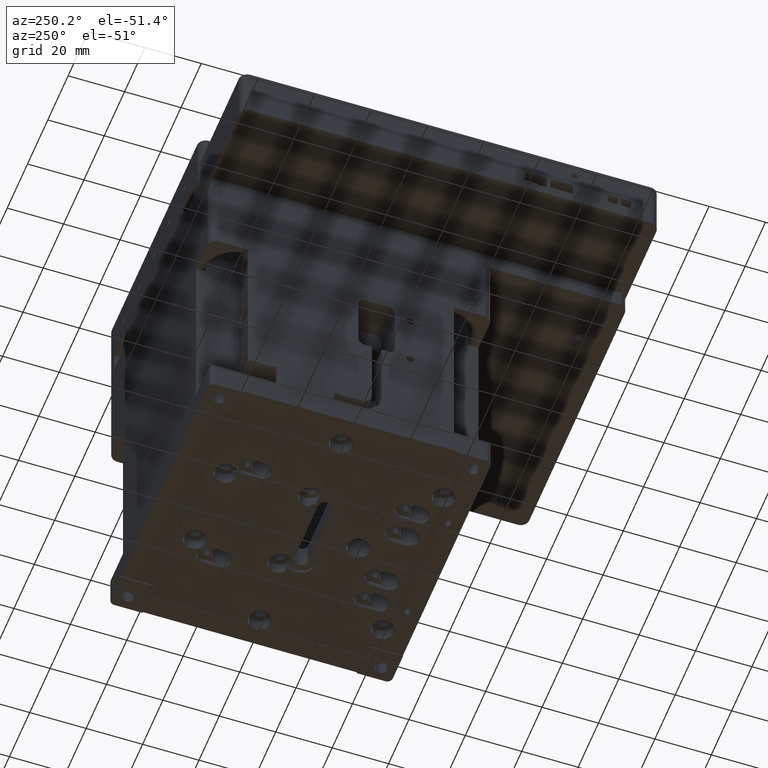
[diagram: clean part render]
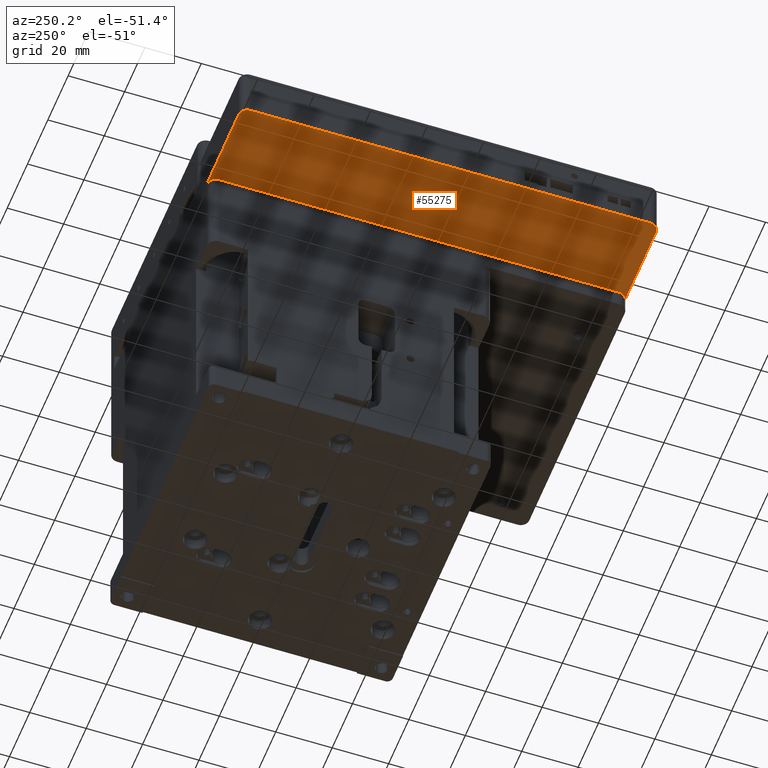
[diagram: same view with one face highlighted and labeled with its STEP entity id]
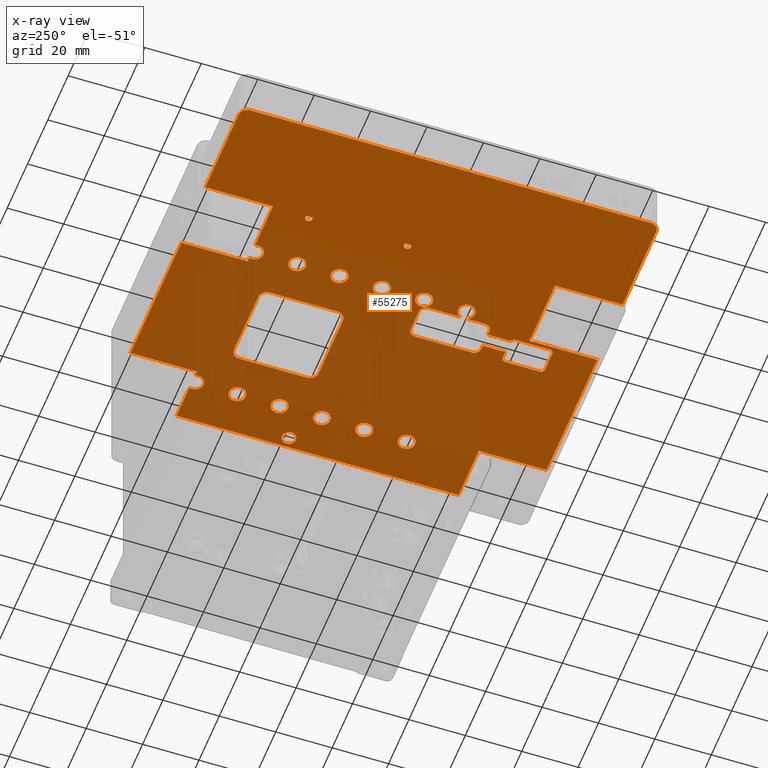
[diagram: x-ray of the same camera — body ghosted, the highlighted face saturated]
A machine part, auxiliary view. The second image highlights one B-rep face of the part: STEP entity #55275.
The next image is the same camera in x-ray: the body ghosted, the highlighted face saturated — about 47% of this face is hidden behind the body in this view.
In plain terms, the highlighted planar face has unit normal (0, -0, -1).
Its self-contained STEP definition (entity closure, byte-faithful):
#92 = LINE ( 'NONE', #64980, #49123 ) ;
#412 = CARTESIAN_POINT ( 'NONE',  ( -45.00000000000017764, -23.00000000000001066, 100.5000000000000000 ) ) ;
#525 = DIRECTION ( 'NONE',  ( 1.000000000000000000, 0.000000000000000000, 0.000000000000000000 ) ) ;
#532 = VERTEX_POINT ( 'NONE', #6391 ) ;
#567 = DIRECTION ( 'NONE',  ( 1.000000000000000000, -5.551115123125781470E-17, 0.000000000000000000 ) ) ;
#696 = VECTOR ( 'NONE', #39611, 1000.000000000000000 ) ;
#703 = ORIENTED_EDGE ( 'NONE', *, *, #20886, .T. ) ;
#809 = CARTESIAN_POINT ( 'NONE',  ( -81.00000000000018474, 2.499999999999992895, 100.5000000000000000 ) ) ;
#1090 = VECTOR ( 'NONE', #50471, 1000.000000000000000 ) ;
#1116 = CARTESIAN_POINT ( 'NONE',  ( 34.49999999999982947, -20.00000000000001066, 100.5000000000000000 ) ) ;
#1150 = CARTESIAN_POINT ( 'NONE',  ( -10.00000000000017586, -9.500000000000012434, 100.5000000000000000 ) ) ;
#1226 = VERTEX_POINT ( 'NONE', #27669 ) ;
#1409 = ORIENTED_EDGE ( 'NONE', *, *, #10616, .T. ) ;
#2605 = VECTOR ( 'NONE', #30295, 1000.000000000000000 ) ;
#2662 = ORIENTED_EDGE ( 'NONE', *, *, #6200, .T. ) ;
#2767 = CARTESIAN_POINT ( 'NONE',  ( -24.50000000000018474, -35.00000000000000711, 100.5000000000000000 ) ) ;
#2879 = AXIS2_PLACEMENT_3D ( 'NONE', #28781, #7129, #86168 ) ;
#2901 = VECTOR ( 'NONE', #29235, 1000.000000000000000 ) ;
#3048 = CARTESIAN_POINT ( 'NONE',  ( 29.99999999999983302, 25.99999999999998934, 100.5000000000000000 ) ) ;
#3337 = FACE_BOUND ( 'NONE', #80913, .T. ) ;
#3509 = VERTEX_POINT ( 'NONE', #86370 ) ;
#3697 = LINE ( 'NONE', #17784, #6100 ) ;
#4055 = EDGE_CURVE ( 'NONE', #61351, #83280, #80124, .T. ) ;
#4394 = CARTESIAN_POINT ( 'NONE',  ( -7.000000000000175859, -12.50000000000001066, 100.5000000000000000 ) ) ;
#4439 = EDGE_CURVE ( 'NONE', #80635, #28020, #53506, .T. ) ;
#4603 = VERTEX_POINT ( 'NONE', #81031 ) ;
#4657 = EDGE_LOOP ( 'NONE', ( #86351, #41148 ) ) ;
#4920 = CARTESIAN_POINT ( 'NONE',  ( 37.49999999999982236, -20.00000000000001066, 100.5000000000000000 ) ) ;
#4987 = VECTOR ( 'NONE', #87692, 1000.000000000000000 ) ;
#4992 = EDGE_LOOP ( 'NONE', ( #55242 ) ) ;
#5027 = AXIS2_PLACEMENT_3D ( 'NONE', #80799, #22038, #72824 ) ;
#5202 = CARTESIAN_POINT ( 'NONE',  ( -11.25000000000017941, -35.00000000000000711, 100.5000000000000000 ) ) ;
#5598 = EDGE_CURVE ( 'NONE', #45318, #84518, #89492, .T. ) ;
#5600 = ORIENTED_EDGE ( 'NONE', *, *, #65141, .T. ) ;
#5785 = DIRECTION ( 'NONE',  ( -1.000000000000000000, 0.000000000000000000, 0.000000000000000000 ) ) ;
#5964 = CARTESIAN_POINT ( 'NONE',  ( -21.75000000000017764, -57.50000000000000711, 100.5000000000000000 ) ) ;
#6040 = CARTESIAN_POINT ( 'NONE',  ( -45.00000000000017764, 11.99999999999999112, 100.5000000000000000 ) ) ;
#6094 = AXIS2_PLACEMENT_3D ( 'NONE', #19782, #20246, #77174 ) ;
#6100 = VECTOR ( 'NONE', #46483, 1000.000000000000000 ) ;
#6115 = CARTESIAN_POINT ( 'NONE',  ( 29.99999999999982947, 2.499999999999987121, 100.5000000000000000 ) ) ;
#6200 = EDGE_CURVE ( 'NONE', #65008, #88871, #77595, .T. ) ;
#6201 = CARTESIAN_POINT ( 'NONE',  ( -19.25000000000018119, -35.00000000000001421, 100.5000000000000000 ) ) ;
#6356 = ORIENTED_EDGE ( 'NONE', *, *, #24582, .T. ) ;
#6391 = CARTESIAN_POINT ( 'NONE',  ( -17.75000000000017764, -60.00000000000001421, 100.5000000000000000 ) ) ;
#6396 = CARTESIAN_POINT ( 'NONE',  ( -21.50000000000018474, -35.00000000000000711, 100.5000000000000000 ) ) ;
#6451 = DIRECTION ( 'NONE',  ( 5.551115123125781470E-17, 1.000000000000000000, -0.000000000000000000 ) ) ;
#6558 = CIRCLE ( 'NONE', #5027, 2.999999999999999112 ) ;
#6848 = CARTESIAN_POINT ( 'NONE',  ( -45.00000000000017764, -21.00000000000000355, 100.5000000000000000 ) ) ;
#6886 = CARTESIAN_POINT ( 'NONE',  ( -45.00000000000018474, -98.00000000000001421, 100.5000000000000000 ) ) ;
#6889 = CARTESIAN_POINT ( 'NONE',  ( 4.999999999999822364, -35.00000000000000711, 100.5000000000000000 ) ) ;
#6935 = LINE ( 'NONE', #51146, #56136 ) ;
#7063 = EDGE_CURVE ( 'NONE', #77541, #29271, #22306, .T. ) ;
#7129 = DIRECTION ( 'NONE',  ( 0.000000000000000000, 0.000000000000000000, 1.000000000000000000 ) ) ;
#7387 = EDGE_CURVE ( 'NONE', #66745, #11900, #92, .T. ) ;
#7426 = CARTESIAN_POINT ( 'NONE',  ( 37.49999999999982236, 9.999999999999985789, 100.5000000000000000 ) ) ;
#7476 = CIRCLE ( 'NONE', #24004, 3.000000000000002665 ) ;
#7586 = CARTESIAN_POINT ( 'NONE',  ( 29.99999999999983302, 49.49999999999998579, 100.5000000000000000 ) ) ;
#7709 = EDGE_CURVE ( 'NONE', #69812, #73140, #57971, .T. ) ;
#7724 = CIRCLE ( 'NONE', #10751, 2.500000000000002220 ) ;
#7905 = ORIENTED_EDGE ( 'NONE', *, *, #7387, .T. ) ;
#8019 = DIRECTION ( 'NONE',  ( 0.000000000000000000, -0.000000000000000000, 1.000000000000000000 ) ) ;
#8128 = CARTESIAN_POINT ( 'NONE',  ( -21.67157287525383325, 25.99999999999953815, 100.5000000000000000 ) ) ;
#8252 = CARTESIAN_POINT ( 'NONE',  ( -10.25000000000017941, -68.00000000000001421, 100.5000000000000000 ) ) ;
#8506 = CARTESIAN_POINT ( 'NONE',  ( 4.999999999999819700, -68.00000000000001421, 100.5000000000000000 ) ) ;
#8611 = CIRCLE ( 'NONE', #35613, 2.999999999999999112 ) ;
#8814 = CARTESIAN_POINT ( 'NONE',  ( -7.000000000000175859, 14.49999999999998934, 100.5000000000000000 ) ) ;
#9068 = CARTESIAN_POINT ( 'NONE',  ( -19.25000000000018119, -57.50000000000000711, 100.5000000000000000 ) ) ;
#9079 = CARTESIAN_POINT ( 'NONE',  ( -24.50000000000018119, 24.99999999999998579, 100.5000000000000000 ) ) ;
#9550 = CARTESIAN_POINT ( 'NONE',  ( -21.75000000000017408, 2.499999999999989786, 100.5000000000000000 ) ) ;
#9621 = EDGE_CURVE ( 'NONE', #76740, #66745, #8611, .T. ) ;
#9725 = CARTESIAN_POINT ( 'NONE',  ( 34.49999999999982236, -50.00000000000000711, 100.5000000000000000 ) ) ;
#9744 = VERTEX_POINT ( 'NONE', #6201 ) ;
#10379 = CARTESIAN_POINT ( 'NONE',  ( -45.00000000000017764, 13.99999999999999112, 100.5000000000000000 ) ) ;
#10592 = CIRCLE ( 'NONE', #6094, 1.500000000000001332 ) ;
#10616 = EDGE_CURVE ( 'NONE', #62234, #44527, #92540, .T. ) ;
#10617 = LINE ( 'NONE', #24746, #83640 ) ;
#10751 = AXIS2_PLACEMENT_3D ( 'NONE', #67997, #40700, #69390 ) ;
#11018 = ORIENTED_EDGE ( 'NONE', *, *, #68799, .T. ) ;
#11102 = CIRCLE ( 'NONE', #68182, 1.500000000000001332 ) ;
#11167 = CARTESIAN_POINT ( 'NONE',  ( -21.50000000000018119, 9.999999999999989342, 100.5000000000000000 ) ) ;
#11228 = VERTEX_POINT ( 'NONE', #16478 ) ;
#11303 = DIRECTION ( 'NONE',  ( 0.000000000000000000, -0.000000000000000000, -1.000000000000000000 ) ) ;
#11405 = CARTESIAN_POINT ( 'NONE',  ( 16.99999999999982592, 14.49999999999998934, 100.5000000000000000 ) ) ;
#11448 = AXIS2_PLACEMENT_3D ( 'NONE', #22867, #15792, #80250 ) ;
#11673 = ORIENTED_EDGE ( 'NONE', *, *, #60940, .T. ) ;
#11727 = VERTEX_POINT ( 'NONE', #53532 ) ;
#11768 = EDGE_CURVE ( 'NONE', #86581, #46051, #63000, .T. ) ;
#11900 = VERTEX_POINT ( 'NONE', #21010 ) ;
#12147 = ORIENTED_EDGE ( 'NONE', *, *, #71789, .T. ) ;
#12196 = CARTESIAN_POINT ( 'NONE',  ( 4.999999999999819700, -74.00000000000001421, 100.5000000000000000 ) ) ;
#12232 = VECTOR ( 'NONE', #52387, 1000.000000000000000 ) ;
#12316 = EDGE_CURVE ( 'NONE', #50242, #56708, #28414, .T. ) ;
#12853 = CARTESIAN_POINT ( 'NONE',  ( -10.25000000000017941, -69.50000000000002842, 100.5000000000000000 ) ) ;
#12984 = CIRCLE ( 'NONE', #53559, 2.999999999999999112 ) ;
#13112 = CARTESIAN_POINT ( 'NONE',  ( 16.99999999999982592, -12.50000000000001066, 100.5000000000000000 ) ) ;
#13406 = EDGE_CURVE ( 'NONE', #37778, #36647, #86781, .T. ) ;
#13460 = CARTESIAN_POINT ( 'NONE',  ( 4.999999999999818812, -98.00000000000001421, 100.5000000000000000 ) ) ;
#13472 = VECTOR ( 'NONE', #63027, 1000.000000000000000 ) ;
#13738 = LINE ( 'NONE', #41957, #84272 ) ;
#13783 = VERTEX_POINT ( 'NONE', #5202 ) ;
#14108 = EDGE_CURVE ( 'NONE', #59919, #59355, #35121, .T. ) ;
#14173 = ORIENTED_EDGE ( 'NONE', *, *, #93115, .T. ) ;
#14185 = LINE ( 'NONE', #50878, #36640 ) ;
#15063 = CARTESIAN_POINT ( 'NONE',  ( 4.999999999999825917, 25.99999999999999289, 100.5000000000000000 ) ) ;
#15397 = ORIENTED_EDGE ( 'NONE', *, *, #70577, .T. ) ;
#15737 = DIRECTION ( 'NONE',  ( 1.000000000000000000, -5.551115123125781470E-17, 0.000000000000000000 ) ) ;
#15790 = AXIS2_PLACEMENT_3D ( 'NONE', #9068, #82427, #73523 ) ;
#15792 = DIRECTION ( 'NONE',  ( 0.000000000000000000, -0.000000000000000000, 1.000000000000000000 ) ) ;
#15861 = CARTESIAN_POINT ( 'NONE',  ( -21.50000000000018119, -5.000000000000009770, 100.5000000000000000 ) ) ;
#16343 = CARTESIAN_POINT ( 'NONE',  ( -12.75000000000018119, 2.499999999999989342, 100.5000000000000000 ) ) ;
#16458 = ORIENTED_EDGE ( 'NONE', *, *, #25343, .T. ) ;
#16478 = CARTESIAN_POINT ( 'NONE',  ( -78.00000000000018474, 49.99999999999999289, 100.5000000000000000 ) ) ;
#16588 = CARTESIAN_POINT ( 'NONE',  ( 31.67157287525347442, 25.99999999999998934, 100.5000000000000000 ) ) ;
#16627 = DIRECTION ( 'NONE',  ( -1.000000000000000000, 0.000000000000000000, 0.000000000000000000 ) ) ;
#16629 = AXIS2_PLACEMENT_3D ( 'NONE', #49695, #35568, #85433 ) ;
#16651 = LINE ( 'NONE', #38756, #12232 ) ;
#16682 = ORIENTED_EDGE ( 'NONE', *, *, #25128, .T. ) ;
#16790 = EDGE_LOOP ( 'NONE', ( #54408, #40391, #86451, #7905, #5600, #33376, #1409, #35415, #27120, #91228, #88316, #25960, #15397, #34521, #21629, #76330, #16458, #42833, #703, #37699, #65800, #59930 ) ) ;
#16904 = CARTESIAN_POINT ( 'NONE',  ( -10.00000000000017586, 14.49999999999998934, 100.5000000000000000 ) ) ;
#17153 = EDGE_CURVE ( 'NONE', #1226, #11228, #21215, .T. ) ;
#17240 = DIRECTION ( 'NONE',  ( 0.000000000000000000, -0.000000000000000000, 1.000000000000000000 ) ) ;
#17266 = CIRCLE ( 'NONE', #15790, 2.499999999999998668 ) ;
#17424 = FACE_BOUND ( 'NONE', #83109, .T. ) ;
#17757 = VERTEX_POINT ( 'NONE', #11167 ) ;
#17784 = CARTESIAN_POINT ( 'NONE',  ( 4.999999999999825917, 25.99999999999999289, 100.5000000000000000 ) ) ;
#17917 = VECTOR ( 'NONE', #56863, 1000.000000000000000 ) ;
#18111 = DIRECTION ( 'NONE',  ( 0.000000000000000000, 0.000000000000000000, 1.000000000000000000 ) ) ;
#18259 = ORIENTED_EDGE ( 'NONE', *, *, #27237, .T. ) ;
#18532 = DIRECTION ( 'NONE',  ( 1.000000000000000000, 0.000000000000000000, 0.000000000000000000 ) ) ;
#19074 = AXIS2_PLACEMENT_3D ( 'NONE', #9725, #17240, #67105 ) ;
#19248 = DIRECTION ( 'NONE',  ( -1.000000000000000000, 5.551115123125781470E-17, -0.000000000000000000 ) ) ;
#19368 = VECTOR ( 'NONE', #53658, 1000.000000000000000 ) ;
#19414 = CARTESIAN_POINT ( 'NONE',  ( -21.75000000000017764, -48.80104211917119272, 100.5000000000000000 ) ) ;
#19617 = CARTESIAN_POINT ( 'NONE',  ( -44.25000000000017764, 12.99999999999999289, 100.5000000000000000 ) ) ;
#19763 = CIRCLE ( 'NONE', #31802, 2.999999999999995559 ) ;
#19782 = CARTESIAN_POINT ( 'NONE',  ( -17.25000000000017764, -69.50000000000002842, 100.5000000000000000 ) ) ;
#19862 = EDGE_CURVE ( 'NONE', #29271, #4603, #43380, .T. ) ;
#19944 = EDGE_CURVE ( 'NONE', #4603, #45318, #66833, .T. ) ;
#20019 = CIRCLE ( 'NONE', #56084, 3.000000000000002665 ) ;
#20081 = DIRECTION ( 'NONE',  ( -1.000000000000000000, 0.000000000000000000, 0.000000000000000000 ) ) ;
#20120 = AXIS2_PLACEMENT_3D ( 'NONE', #89795, #25349, #54040 ) ;
#20246 = DIRECTION ( 'NONE',  ( 0.000000000000000000, 0.000000000000000000, 1.000000000000000000 ) ) ;
#20367 = DIRECTION ( 'NONE',  ( 0.000000000000000000, 0.000000000000000000, 1.000000000000000000 ) ) ;
#20609 = AXIS2_PLACEMENT_3D ( 'NONE', #44313, #23153, #73476 ) ;
#20674 = CARTESIAN_POINT ( 'NONE',  ( -8.750000000000179412, -37.50000000000001421, 100.5000000000000000 ) ) ;
#20800 = VERTEX_POINT ( 'NONE', #19414 ) ;
#20868 = ORIENTED_EDGE ( 'NONE', *, *, #4055, .T. ) ;
#20886 = EDGE_CURVE ( 'NONE', #25031, #37609, #7476, .T. ) ;
#20915 = ORIENTED_EDGE ( 'NONE', *, *, #77051, .T. ) ;
#21010 = CARTESIAN_POINT ( 'NONE',  ( -20.00000000000017764, 25.99999999999998934, 100.5000000000000000 ) ) ;
#21063 = CIRCLE ( 'NONE', #42070, 2.999999999999995559 ) ;
#21107 = VERTEX_POINT ( 'NONE', #25514 ) ;
#21215 = CIRCLE ( 'NONE', #58758, 3.000000000000002665 ) ;
#21308 = EDGE_CURVE ( 'NONE', #72448, #69812, #54391, .T. ) ;
#21425 = EDGE_LOOP ( 'NONE', ( #37878, #39390, #24999, #20868, #16682, #27136, #63243, #2662, #12147, #60180, #43243, #89150, #34309, #27248, #88044, #78555, #65464, #50808, #37235, #14173, #86413, #89217 ) ) ;
#21567 = CARTESIAN_POINT ( 'NONE',  ( 4.999999999999826805, 49.99999999999998579, 100.5000000000000000 ) ) ;
#21629 = ORIENTED_EDGE ( 'NONE', *, *, #68677, .T. ) ;
#21641 = DIRECTION ( 'NONE',  ( 1.000000000000000000, 0.000000000000000000, 0.000000000000000000 ) ) ;
#21735 = CARTESIAN_POINT ( 'NONE',  ( -78.00000000000018474, -95.00000000000001421, 100.5000000000000000 ) ) ;
#21802 = DIRECTION ( 'NONE',  ( 0.000000000000000000, 0.000000000000000000, 1.000000000000000000 ) ) ;
#22038 = DIRECTION ( 'NONE',  ( 0.000000000000000000, -0.000000000000000000, 1.000000000000000000 ) ) ;
#22306 = LINE ( 'NONE', #66011, #2605 ) ;
#22603 = DIRECTION ( 'NONE',  ( 1.000000000000000000, -5.551115123125781470E-17, 0.000000000000000000 ) ) ;
#22867 = CARTESIAN_POINT ( 'NONE',  ( -24.50000000000018474, -50.00000000000000711, 100.5000000000000000 ) ) ;
#22916 = EDGE_CURVE ( 'NONE', #31852, #31852, #20019, .T. ) ;
#22981 = VECTOR ( 'NONE', #82190, 1000.000000000000000 ) ;
#23153 = DIRECTION ( 'NONE',  ( 0.000000000000000000, 0.000000000000000000, 1.000000000000000000 ) ) ;
#23254 = CARTESIAN_POINT ( 'NONE',  ( 4.999999999999818812, -98.00000000000000000, 100.5000000000000000 ) ) ;
#23475 = DIRECTION ( 'NONE',  ( -4.688441826964343065E-17, -1.000000000000000000, 0.000000000000000000 ) ) ;
#23701 = LINE ( 'NONE', #23254, #4987 ) ;
#24004 = AXIS2_PLACEMENT_3D ( 'NONE', #21735, #71588, #50884 ) ;
#24294 = VECTOR ( 'NONE', #15737, 1000.000000000000000 ) ;
#24305 = EDGE_CURVE ( 'NONE', #66516, #40251, #76287, .T. ) ;
#24375 = LINE ( 'NONE', #88351, #51026 ) ;
#24495 = PLANE ( 'NONE',  #37022 ) ;
#24582 = EDGE_CURVE ( 'NONE', #80317, #80317, #65272, .T. ) ;
#24635 = DIRECTION ( 'NONE',  ( 0.000000000000000000, 0.000000000000000000, 1.000000000000000000 ) ) ;
#24746 = CARTESIAN_POINT ( 'NONE',  ( -21.75000000000017408, 2.499999999999989786, 100.5000000000000000 ) ) ;
#24753 = CARTESIAN_POINT ( 'NONE',  ( 4.999999999999823252, -12.50000000000001066, 100.5000000000000000 ) ) ;
#24857 = DIRECTION ( 'NONE',  ( 0.000000000000000000, -0.000000000000000000, 1.000000000000000000 ) ) ;
#24999 = ORIENTED_EDGE ( 'NONE', *, *, #50935, .T. ) ;
#25012 = CARTESIAN_POINT ( 'NONE',  ( -17.25000000000017764, -68.00000000000001421, 100.5000000000000000 ) ) ;
#25031 = VERTEX_POINT ( 'NONE', #64588 ) ;
#25128 = EDGE_CURVE ( 'NONE', #83280, #3509, #17266, .T. ) ;
#25343 = EDGE_CURVE ( 'NONE', #33229, #59129, #57916, .T. ) ;
#25349 = DIRECTION ( 'NONE',  ( 0.000000000000000000, -0.000000000000000000, 1.000000000000000000 ) ) ;
#25511 = AXIS2_PLACEMENT_3D ( 'NONE', #50463, #20367, #5785 ) ;
#25514 = CARTESIAN_POINT ( 'NONE',  ( 37.49999999999982236, -5.000000000000013323, 100.5000000000000000 ) ) ;
#25960 = ORIENTED_EDGE ( 'NONE', *, *, #37690, .T. ) ;
#26375 = FACE_BOUND ( 'NONE', #53175, .T. ) ;
#26679 = CIRCLE ( 'NONE', #20609, 2.499999999999998668 ) ;
#26863 = VERTEX_POINT ( 'NONE', #20674 ) ;
#26970 = CARTESIAN_POINT ( 'NONE',  ( 49.99999999999980105, -74.00000000000001421, 100.5000000000000142 ) ) ;
#27120 = ORIENTED_EDGE ( 'NONE', *, *, #82154, .T. ) ;
#27136 = ORIENTED_EDGE ( 'NONE', *, *, #72803, .T. ) ;
#27163 = EDGE_CURVE ( 'NONE', #37609, #1226, #77948, .T. ) ;
#27237 = EDGE_CURVE ( 'NONE', #46051, #59743, #44969, .T. ) ;
#27248 = ORIENTED_EDGE ( 'NONE', *, *, #65923, .T. ) ;
#27313 = CARTESIAN_POINT ( 'NONE',  ( -24.50000000000018119, -20.00000000000001066, 100.5000000000000000 ) ) ;
#27390 = EDGE_CURVE ( 'NONE', #33243, #33243, #7724, .T. ) ;
#27471 = ORIENTED_EDGE ( 'NONE', *, *, #12316, .T. ) ;
#27669 = CARTESIAN_POINT ( 'NONE',  ( -81.00000000000018474, 46.99999999999999289, 100.5000000000000000 ) ) ;
#28020 = VERTEX_POINT ( 'NONE', #50887 ) ;
#28414 = LINE ( 'NONE', #78754, #85625 ) ;
#28781 = CARTESIAN_POINT ( 'NONE',  ( -17.25000000000017764, -81.50000000000001421, 100.5000000000000000 ) ) ;
#28853 = DIRECTION ( 'NONE',  ( -1.000000000000000000, 0.000000000000000000, 0.000000000000000000 ) ) ;
#29002 = EDGE_CURVE ( 'NONE', #28020, #42339, #59443, .T. ) ;
#29009 = CARTESIAN_POINT ( 'NONE',  ( -21.75000000000017764, -51.19895788082864385, 100.5000000000000000 ) ) ;
#29235 = DIRECTION ( 'NONE',  ( -1.000000000000000000, 5.551115123125781470E-17, -0.000000000000000000 ) ) ;
#29271 = VERTEX_POINT ( 'NONE', #78644 ) ;
#29416 = EDGE_LOOP ( 'NONE', ( #90364, #11018 ) ) ;
#29446 = VERTEX_POINT ( 'NONE', #10379 ) ;
#29554 = DIRECTION ( 'NONE',  ( -1.000000000000000000, 0.000000000000000000, 0.000000000000000000 ) ) ;
#29800 = DIRECTION ( 'NONE',  ( 0.000000000000000000, -0.000000000000000000, 1.000000000000000000 ) ) ;
#30295 = DIRECTION ( 'NONE',  ( -5.551115123125781470E-17, -1.000000000000000000, 0.000000000000000000 ) ) ;
#31315 = CARTESIAN_POINT ( 'NONE',  ( -10.25000000000018119, -81.50000000000001421, 100.5000000000000000 ) ) ;
#31556 = FACE_BOUND ( 'NONE', #75163, .T. ) ;
#31578 = LINE ( 'NONE', #60258, #45400 ) ;
#31790 = VECTOR ( 'NONE', #53439, 1000.000000000000000 ) ;
#31802 = AXIS2_PLACEMENT_3D ( 'NONE', #1116, #29800, #87180 ) ;
#31827 = DIRECTION ( 'NONE',  ( -1.000000000000000000, 5.551115123125781470E-17, -0.000000000000000000 ) ) ;
#31834 = EDGE_CURVE ( 'NONE', #70649, #43536, #42695, .T. ) ;
#31852 = VERTEX_POINT ( 'NONE', #80771 ) ;
#31983 = VECTOR ( 'NONE', #37301, 1000.000000000000000 ) ;
#31998 = ORIENTED_EDGE ( 'NONE', *, *, #46840, .T. ) ;
#32486 = DIRECTION ( 'NONE',  ( 1.000000000000000000, -5.551115123125781470E-17, 0.000000000000000000 ) ) ;
#32599 = CARTESIAN_POINT ( 'NONE',  ( -27.32842712474652913, 25.99999999999999289, 100.5000000000000000 ) ) ;
#32679 = CARTESIAN_POINT ( 'NONE',  ( -20.00000000000018474, -98.00000000000001421, 100.5000000000000000 ) ) ;
#33229 = VERTEX_POINT ( 'NONE', #52671 ) ;
#33243 = VERTEX_POINT ( 'NONE', #91095 ) ;
#33376 = ORIENTED_EDGE ( 'NONE', *, *, #70290, .T. ) ;
#33377 = VERTEX_POINT ( 'NONE', #8252 ) ;
#33960 = AXIS2_PLACEMENT_3D ( 'NONE', #8814, #78947, #29554 ) ;
#34095 = DIRECTION ( 'NONE',  ( 1.000000000000000000, 0.000000000000000000, 0.000000000000000000 ) ) ;
#34226 = ORIENTED_EDGE ( 'NONE', *, *, #69633, .T. ) ;
#34309 = ORIENTED_EDGE ( 'NONE', *, *, #5598, .T. ) ;
#34353 = LINE ( 'NONE', #6115, #13472 ) ;
#34521 = ORIENTED_EDGE ( 'NONE', *, *, #14108, .T. ) ;
#34658 = DIRECTION ( 'NONE',  ( 0.000000000000000000, 0.000000000000000000, 1.000000000000000000 ) ) ;
#34827 = EDGE_CURVE ( 'NONE', #13783, #9744, #35127, .T. ) ;
#34829 = EDGE_CURVE ( 'NONE', #75853, #33377, #11102, .T. ) ;
#34855 = ORIENTED_EDGE ( 'NONE', *, *, #74622, .T. ) ;
#34924 = DIRECTION ( 'NONE',  ( 1.000000000000000000, -5.551115123125781470E-17, 0.000000000000000000 ) ) ;
#34949 = DIRECTION ( 'NONE',  ( -1.000000000000000000, 0.000000000000000000, 0.000000000000000000 ) ) ;
#35041 = CARTESIAN_POINT ( 'NONE',  ( -11.25000000000017941, -60.00000000000001421, 100.5000000000000000 ) ) ;
#35121 = LINE ( 'NONE', #13460, #40242 ) ;
#35127 = LINE ( 'NONE', #6889, #57636 ) ;
#35245 = CARTESIAN_POINT ( 'NONE',  ( -20.00000000000018119, 2.499999999999989786, 100.5000000000000000 ) ) ;
#35415 = ORIENTED_EDGE ( 'NONE', *, *, #49450, .T. ) ;
#35568 = DIRECTION ( 'NONE',  ( 0.000000000000000000, -0.000000000000000000, 1.000000000000000000 ) ) ;
#35613 = AXIS2_PLACEMENT_3D ( 'NONE', #9079, #61265, #66458 ) ;
#36197 = AXIS2_PLACEMENT_3D ( 'NONE', #91752, #56904, #85607 ) ;
#36449 = CARTESIAN_POINT ( 'NONE',  ( 4.999999999999820588, -60.00000000000001421, 100.5000000000000000 ) ) ;
#36500 = DIRECTION ( 'NONE',  ( -1.000000000000000000, 5.551115123125781470E-17, -0.000000000000000000 ) ) ;
#36640 = VECTOR ( 'NONE', #64973, 1000.000000000000000 ) ;
#36647 = VERTEX_POINT ( 'NONE', #6848 ) ;
#37021 = VECTOR ( 'NONE', #50268, 1000.000000000000000 ) ;
#37022 = AXIS2_PLACEMENT_3D ( 'NONE', #89407, #11303, #32486 ) ;
#37235 = ORIENTED_EDGE ( 'NONE', *, *, #43613, .T. ) ;
#37301 = DIRECTION ( 'NONE',  ( -5.551115123125781470E-17, -1.000000000000000000, 0.000000000000000000 ) ) ;
#37609 = VERTEX_POINT ( 'NONE', #81851 ) ;
#37690 = EDGE_CURVE ( 'NONE', #43536, #72313, #77563, .T. ) ;
#37699 = ORIENTED_EDGE ( 'NONE', *, *, #27163, .T. ) ;
#37753 = AXIS2_PLACEMENT_3D ( 'NONE', #11405, #69707, #75383 ) ;
#37778 = VERTEX_POINT ( 'NONE', #412 ) ;
#37878 = ORIENTED_EDGE ( 'NONE', *, *, #66241, .T. ) ;
#38351 = VECTOR ( 'NONE', #71399, 1000.000000000000000 ) ;
#38756 = CARTESIAN_POINT ( 'NONE',  ( -8.750000000000175859, 2.499999999999989342, 100.5000000000000000 ) ) ;
#38819 = EDGE_CURVE ( 'NONE', #48476, #70649, #66594, .T. ) ;
#39390 = ORIENTED_EDGE ( 'NONE', *, *, #90896, .T. ) ;
#39533 = FACE_OUTER_BOUND ( 'NONE', #16790, .T. ) ;
#39539 = CIRCLE ( 'NONE', #92114, 2.999999999999999112 ) ;
#39611 = DIRECTION ( 'NONE',  ( -5.551115123125781470E-17, -1.000000000000000000, 0.000000000000000000 ) ) ;
#40242 = VECTOR ( 'NONE', #36500, 1000.000000000000000 ) ;
#40251 = VERTEX_POINT ( 'NONE', #92889 ) ;
#40325 = VERTEX_POINT ( 'NONE', #58062 ) ;
#40391 = ORIENTED_EDGE ( 'NONE', *, *, #69861, .T. ) ;
#40526 = CARTESIAN_POINT ( 'NONE',  ( -45.00000000000018474, 2.499999999999991118, 100.5000000000000000 ) ) ;
#40590 = CARTESIAN_POINT ( 'NONE',  ( -12.75000000000018474, -68.00000000000001421, 100.5000000000000000 ) ) ;
#40700 = DIRECTION ( 'NONE',  ( 0.000000000000000000, -0.000000000000000000, 1.000000000000000000 ) ) ;
#41148 = ORIENTED_EDGE ( 'NONE', *, *, #41287, .T. ) ;
#41287 = EDGE_CURVE ( 'NONE', #29446, #73399, #73336, .T. ) ;
#41957 = CARTESIAN_POINT ( 'NONE',  ( 4.999999999999826805, 49.49999999999999289, 100.5000000000000000 ) ) ;
#42070 = AXIS2_PLACEMENT_3D ( 'NONE', #77250, #71115, #85693 ) ;
#42339 = VERTEX_POINT ( 'NONE', #35041 ) ;
#42350 = ORIENTED_EDGE ( 'NONE', *, *, #21308, .T. ) ;
#42695 = LINE ( 'NONE', #77077, #38351 ) ;
#42833 = ORIENTED_EDGE ( 'NONE', *, *, #64459, .T. ) ;
#42906 = VECTOR ( 'NONE', #67065, 1000.000000000000000 ) ;
#43102 = CARTESIAN_POINT ( 'NONE',  ( 29.99999999999983302, 2.499999999999987121, 100.5000000000000000 ) ) ;
#43134 = DIRECTION ( 'NONE',  ( 5.551115123125781470E-17, 1.000000000000000000, -0.000000000000000000 ) ) ;
#43183 = EDGE_LOOP ( 'NONE', ( #31998 ) ) ;
#43243 = ORIENTED_EDGE ( 'NONE', *, *, #19862, .T. ) ;
#43380 = CIRCLE ( 'NONE', #2879, 1.500000000000001332 ) ;
#43536 = VERTEX_POINT ( 'NONE', #26970 ) ;
#43613 = EDGE_CURVE ( 'NONE', #42339, #57469, #48069, .T. ) ;
#43788 = CIRCLE ( 'NONE', #37753, 2.999999999999999112 ) ;
#43812 = EDGE_LOOP ( 'NONE', ( #75668 ) ) ;
#44033 = CARTESIAN_POINT ( 'NONE',  ( 4.999999999999825917, 25.99999999999998934, 100.5000000000000000 ) ) ;
#44313 = CARTESIAN_POINT ( 'NONE',  ( -19.25000000000018119, -37.50000000000001421, 100.5000000000000000 ) ) ;
#44323 = VECTOR ( 'NONE', #19248, 1000.000000000000000 ) ;
#44527 = VERTEX_POINT ( 'NONE', #3048 ) ;
#44969 = LINE ( 'NONE', #24753, #31790 ) ;
#45318 = VERTEX_POINT ( 'NONE', #60195 ) ;
#45400 = VECTOR ( 'NONE', #88964, 1000.000000000000000 ) ;
#45661 = FACE_BOUND ( 'NONE', #43812, .T. ) ;
#45835 = DIRECTION ( 'NONE',  ( 0.000000000000000000, -0.000000000000000000, 1.000000000000000000 ) ) ;
#46051 = VERTEX_POINT ( 'NONE', #4394 ) ;
#46223 = AXIS2_PLACEMENT_3D ( 'NONE', #89543, #24635, #16627 ) ;
#46463 = DIRECTION ( 'NONE',  ( -4.688441826964343065E-17, -1.000000000000000000, 0.000000000000000000 ) ) ;
#46483 = DIRECTION ( 'NONE',  ( 1.000000000000000000, -5.551115123125781470E-17, 0.000000000000000000 ) ) ;
#46840 = EDGE_CURVE ( 'NONE', #58694, #58694, #80231, .T. ) ;
#46994 = VECTOR ( 'NONE', #84182, 1000.000000000000000 ) ;
#47067 = FACE_BOUND ( 'NONE', #75086, .T. ) ;
#47304 = AXIS2_PLACEMENT_3D ( 'NONE', #87045, #8019, #525 ) ;
#47625 = CARTESIAN_POINT ( 'NONE',  ( -8.750000000000177636, -69.50000000000002842, 100.5000000000000000 ) ) ;
#47695 = CARTESIAN_POINT ( 'NONE',  ( 34.49999999999982236, -35.00000000000000711, 100.5000000000000000 ) ) ;
#48047 = ORIENTED_EDGE ( 'NONE', *, *, #22916, .T. ) ;
#48069 = CIRCLE ( 'NONE', #25511, 2.499999999999998668 ) ;
#48446 = LINE ( 'NONE', #63461, #46994 ) ;
#48476 = VERTEX_POINT ( 'NONE', #65612 ) ;
#48800 = AXIS2_PLACEMENT_3D ( 'NONE', #19617, #34658, #20081 ) ;
#49123 = VECTOR ( 'NONE', #567, 1000.000000000000000 ) ;
#49450 = EDGE_CURVE ( 'NONE', #44527, #87539, #79522, .T. ) ;
#49524 = DIRECTION ( 'NONE',  ( -1.000000000000000000, 5.551115123125781470E-17, -0.000000000000000000 ) ) ;
#49581 = CARTESIAN_POINT ( 'NONE',  ( -78.00000000000018474, 46.99999999999999289, 100.5000000000000000 ) ) ;
#49695 = CARTESIAN_POINT ( 'NONE',  ( 34.49999999999982947, 24.99999999999998579, 100.5000000000000000 ) ) ;
#49772 = VECTOR ( 'NONE', #6451, 1000.000000000000000 ) ;
#49842 = CARTESIAN_POINT ( 'NONE',  ( 4.999999999999819700, -68.00000000000001421, 100.5000000000000000 ) ) ;
#50242 = VERTEX_POINT ( 'NONE', #73178 ) ;
#50268 = DIRECTION ( 'NONE',  ( 1.000000000000000000, -5.551115123125781470E-17, 0.000000000000000000 ) ) ;
#50463 = CARTESIAN_POINT ( 'NONE',  ( -11.25000000000017941, -57.50000000000000711, 100.5000000000000000 ) ) ;
#50471 = DIRECTION ( 'NONE',  ( 5.551115123125781470E-17, 1.000000000000000000, -0.000000000000000000 ) ) ;
#50742 = VERTEX_POINT ( 'NONE', #57320 ) ;
#50808 = ORIENTED_EDGE ( 'NONE', *, *, #29002, .T. ) ;
#50878 = CARTESIAN_POINT ( 'NONE',  ( -10.00000000000017586, 2.499999999999989342, 100.5000000000000000 ) ) ;
#50884 = DIRECTION ( 'NONE',  ( 1.000000000000000000, 0.000000000000000000, 0.000000000000000000 ) ) ;
#50887 = CARTESIAN_POINT ( 'NONE',  ( -12.75000000000018474, -60.00000000000001421, 100.5000000000000000 ) ) ;
#50935 = EDGE_CURVE ( 'NONE', #20800, #61351, #76049, .T. ) ;
#51026 = VECTOR ( 'NONE', #46463, 1000.000000000000000 ) ;
#51146 = CARTESIAN_POINT ( 'NONE',  ( -20.00000000000018119, 2.499999999999989786, 100.5000000000000000 ) ) ;
#51195 = CARTESIAN_POINT ( 'NONE',  ( 29.99999999999982592, -98.00000000000001421, 100.5000000000000000 ) ) ;
#51416 = CARTESIAN_POINT ( 'NONE',  ( 37.49999999999982236, -50.00000000000000711, 100.5000000000000000 ) ) ;
#52387 = DIRECTION ( 'NONE',  ( 5.551115123125781470E-17, 1.000000000000000000, -0.000000000000000000 ) ) ;
#52671 = CARTESIAN_POINT ( 'NONE',  ( -45.00000000000019185, -74.00000000000001421, 100.5000000000000000 ) ) ;
#52937 = ORIENTED_EDGE ( 'NONE', *, *, #11768, .T. ) ;
#53175 = EDGE_LOOP ( 'NONE', ( #81181 ) ) ;
#53439 = DIRECTION ( 'NONE',  ( 1.000000000000000000, -5.551115123125781470E-17, 0.000000000000000000 ) ) ;
#53506 = LINE ( 'NONE', #16343, #22981 ) ;
#53532 = CARTESIAN_POINT ( 'NONE',  ( -20.00000000000018829, 49.49999999999999289, 100.5000000000000000 ) ) ;
#53559 = AXIS2_PLACEMENT_3D ( 'NONE', #2767, #24857, #76097 ) ;
#53652 = FACE_BOUND ( 'NONE', #29416, .T. ) ;
#53658 = DIRECTION ( 'NONE',  ( 1.000000000000000000, -5.551115123125781470E-17, 0.000000000000000000 ) ) ;
#54040 = DIRECTION ( 'NONE',  ( 1.000000000000000000, 0.000000000000000000, 0.000000000000000000 ) ) ;
#54116 = FACE_BOUND ( 'NONE', #90780, .T. ) ;
#54391 = LINE ( 'NONE', #75544, #66083 ) ;
#54408 = ORIENTED_EDGE ( 'NONE', *, *, #24305, .T. ) ;
#54592 = FACE_BOUND ( 'NONE', #4657, .T. ) ;
#55242 = ORIENTED_EDGE ( 'NONE', *, *, #55606, .T. ) ;
#55275 = ADVANCED_FACE ( 'NONE', ( #54592, #53652, #39533, #17424, #67752, #45661, #54116, #3337, #74362, #31556, #26375, #88944, #60705, #60239, #47067 ), #24495, .T. ) ;
#55606 = EDGE_CURVE ( 'NONE', #86818, #86818, #12984, .T. ) ;
#56084 = AXIS2_PLACEMENT_3D ( 'NONE', #47695, #45835, #18532 ) ;
#56136 = VECTOR ( 'NONE', #43134, 1000.000000000000000 ) ;
#56302 = DIRECTION ( 'NONE',  ( -1.000000000000000000, 0.000000000000000000, 0.000000000000000000 ) ) ;
#56443 = CARTESIAN_POINT ( 'NONE',  ( 49.99999999999982236, 25.99999999999998224, 100.5000000000000000 ) ) ;
#56708 = VERTEX_POINT ( 'NONE', #87260 ) ;
#56821 = VECTOR ( 'NONE', #85012, 1000.000000000000000 ) ;
#56863 = DIRECTION ( 'NONE',  ( 5.551115123125781470E-17, 1.000000000000000000, -0.000000000000000000 ) ) ;
#56904 = DIRECTION ( 'NONE',  ( 0.000000000000000000, 0.000000000000000000, 1.000000000000000000 ) ) ;
#57320 = CARTESIAN_POINT ( 'NONE',  ( -21.50000000000018119, -20.00000000000001066, 100.5000000000000000 ) ) ;
#57469 = VERTEX_POINT ( 'NONE', #65851 ) ;
#57636 = VECTOR ( 'NONE', #49524, 1000.000000000000000 ) ;
#57916 = LINE ( 'NONE', #65429, #89461 ) ;
#57971 = CIRCLE ( 'NONE', #33960, 2.999999999999999112 ) ;
#58062 = CARTESIAN_POINT ( 'NONE',  ( -20.00000000000018474, -74.00000000000001421, 100.5000000000000000 ) ) ;
#58694 = VERTEX_POINT ( 'NONE', #7426 ) ;
#58758 = AXIS2_PLACEMENT_3D ( 'NONE', #49581, #78262, #34095 ) ;
#58847 = LINE ( 'NONE', #8506, #2901 ) ;
#59014 = ORIENTED_EDGE ( 'NONE', *, *, #75032, .T. ) ;
#59017 = ORIENTED_EDGE ( 'NONE', *, *, #65446, .T. ) ;
#59129 = VERTEX_POINT ( 'NONE', #6886 ) ;
#59271 = CIRCLE ( 'NONE', #48800, 1.250000000000001110 ) ;
#59310 = CARTESIAN_POINT ( 'NONE',  ( -8.750000000000181188, -81.50000000000001421, 100.5000000000000000 ) ) ;
#59355 = VERTEX_POINT ( 'NONE', #32679 ) ;
#59443 = LINE ( 'NONE', #88136, #69509 ) ;
#59625 = CIRCLE ( 'NONE', #19074, 3.000000000000002665 ) ;
#59743 = VERTEX_POINT ( 'NONE', #13112 ) ;
#59919 = VERTEX_POINT ( 'NONE', #51195 ) ;
#59930 = ORIENTED_EDGE ( 'NONE', *, *, #90268, .T. ) ;
#60180 = ORIENTED_EDGE ( 'NONE', *, *, #7063, .T. ) ;
#60195 = CARTESIAN_POINT ( 'NONE',  ( -10.25000000000018119, -83.00000000000001421, 100.5000000000000000 ) ) ;
#60239 = FACE_BOUND ( 'NONE', #4992, .T. ) ;
#60258 = CARTESIAN_POINT ( 'NONE',  ( 4.999999999999819700, -74.00000000000001421, 100.5000000000000000 ) ) ;
#60328 = VERTEX_POINT ( 'NONE', #51416 ) ;
#60598 = CARTESIAN_POINT ( 'NONE',  ( -7.000000000000175859, 17.49999999999998934, 100.5000000000000000 ) ) ;
#60705 = FACE_BOUND ( 'NONE', #43183, .T. ) ;
#60847 = EDGE_CURVE ( 'NONE', #69344, #69344, #19763, .T. ) ;
#60925 = DIRECTION ( 'NONE',  ( -1.000000000000000000, 0.000000000000000000, 0.000000000000000000 ) ) ;
#60940 = EDGE_CURVE ( 'NONE', #56708, #72448, #43788, .T. ) ;
#61005 = VECTOR ( 'NONE', #91269, 1000.000000000000000 ) ;
#61265 = DIRECTION ( 'NONE',  ( 0.000000000000000000, -0.000000000000000000, 1.000000000000000000 ) ) ;
#61351 = VERTEX_POINT ( 'NONE', #29009 ) ;
#62234 = VERTEX_POINT ( 'NONE', #7586 ) ;
#63000 = CIRCLE ( 'NONE', #90073, 2.999999999999999112 ) ;
#63027 = DIRECTION ( 'NONE',  ( -5.551115123125781470E-17, -1.000000000000000000, 0.000000000000000000 ) ) ;
#63028 = VECTOR ( 'NONE', #23475, 1000.000000000000000 ) ;
#63243 = ORIENTED_EDGE ( 'NONE', *, *, #84687, .T. ) ;
#63380 = EDGE_CURVE ( 'NONE', #40325, #33229, #31578, .T. ) ;
#63461 = CARTESIAN_POINT ( 'NONE',  ( -17.75000000000017764, 2.499999999999989786, 100.5000000000000000 ) ) ;
#63948 = AXIS2_PLACEMENT_3D ( 'NONE', #31315, #18111, #60925 ) ;
#64337 = VERTEX_POINT ( 'NONE', #70796 ) ;
#64459 = EDGE_CURVE ( 'NONE', #59129, #25031, #23701, .T. ) ;
#64588 = CARTESIAN_POINT ( 'NONE',  ( -78.00000000000018474, -98.00000000000001421, 100.5000000000000000 ) ) ;
#64898 = DIRECTION ( 'NONE',  ( 0.000000000000000000, -0.000000000000000000, 1.000000000000000000 ) ) ;
#64973 = DIRECTION ( 'NONE',  ( -5.551115123125781470E-17, -1.000000000000000000, 0.000000000000000000 ) ) ;
#64980 = CARTESIAN_POINT ( 'NONE',  ( 4.999999999999825917, 25.99999999999998934, 100.5000000000000000 ) ) ;
#65008 = VERTEX_POINT ( 'NONE', #77968 ) ;
#65141 = EDGE_CURVE ( 'NONE', #11900, #11727, #6935, .T. ) ;
#65272 = CIRCLE ( 'NONE', #47304, 2.999999999999999112 ) ;
#65348 = CARTESIAN_POINT ( 'NONE',  ( -45.00000000000017764, 49.99999999999998579, 100.5000000000000000 ) ) ;
#65429 = CARTESIAN_POINT ( 'NONE',  ( -45.00000000000018474, 2.499999999999991118, 100.5000000000000000 ) ) ;
#65446 = EDGE_CURVE ( 'NONE', #60328, #60328, #59625, .T. ) ;
#65464 = ORIENTED_EDGE ( 'NONE', *, *, #4439, .T. ) ;
#65612 = CARTESIAN_POINT ( 'NONE',  ( 37.32842712474617741, 25.99999999999953459, 100.5000000000000000 ) ) ;
#65800 = ORIENTED_EDGE ( 'NONE', *, *, #17153, .T. ) ;
#65851 = CARTESIAN_POINT ( 'NONE',  ( -8.750000000000179412, -57.50000000000000711, 100.5000000000000000 ) ) ;
#65923 = EDGE_CURVE ( 'NONE', #84518, #75853, #86214, .T. ) ;
#66011 = CARTESIAN_POINT ( 'NONE',  ( -18.75000000000017764, 2.499999999999989786, 100.5000000000000000 ) ) ;
#66083 = VECTOR ( 'NONE', #31827, 1000.000000000000000 ) ;
#66241 = EDGE_CURVE ( 'NONE', #9744, #64337, #26679, .T. ) ;
#66458 = DIRECTION ( 'NONE',  ( 1.000000000000000000, 0.000000000000000000, 0.000000000000000000 ) ) ;
#66516 = VERTEX_POINT ( 'NONE', #81828 ) ;
#66594 = LINE ( 'NONE', #44033, #42906 ) ;
#66745 = VERTEX_POINT ( 'NONE', #8128 ) ;
#66778 = VECTOR ( 'NONE', #22603, 1000.000000000000000 ) ;
#66833 = LINE ( 'NONE', #88951, #19368 ) ;
#67065 = DIRECTION ( 'NONE',  ( 1.000000000000000000, -5.551115123125781470E-17, 0.000000000000000000 ) ) ;
#67105 = DIRECTION ( 'NONE',  ( 1.000000000000000000, 0.000000000000000000, 0.000000000000000000 ) ) ;
#67752 = FACE_BOUND ( 'NONE', #21425, .T. ) ;
#67877 = DIRECTION ( 'NONE',  ( 1.000000000000000000, -5.551115123125781470E-17, 0.000000000000000000 ) ) ;
#67997 = CARTESIAN_POINT ( 'NONE',  ( 46.24999999999982947, -12.50000000000001243, 100.5000000000000000 ) ) ;
#68182 = AXIS2_PLACEMENT_3D ( 'NONE', #12853, #78210, #34949 ) ;
#68272 = EDGE_CURVE ( 'NONE', #33377, #80635, #58847, .T. ) ;
#68677 = EDGE_CURVE ( 'NONE', #59355, #40325, #78513, .T. ) ;
#68799 = EDGE_CURVE ( 'NONE', #36647, #37778, #24375, .T. ) ;
#68807 = EDGE_LOOP ( 'NONE', ( #34226 ) ) ;
#69344 = VERTEX_POINT ( 'NONE', #4920 ) ;
#69390 = DIRECTION ( 'NONE',  ( 1.000000000000000000, 0.000000000000000000, 0.000000000000000000 ) ) ;
#69509 = VECTOR ( 'NONE', #67877, 1000.000000000000000 ) ;
#69633 = EDGE_CURVE ( 'NONE', #21107, #21107, #21063, .T. ) ;
#69707 = DIRECTION ( 'NONE',  ( 0.000000000000000000, 0.000000000000000000, 1.000000000000000000 ) ) ;
#69812 = VERTEX_POINT ( 'NONE', #60598 ) ;
#69861 = EDGE_CURVE ( 'NONE', #40251, #76740, #3697, .T. ) ;
#69959 = DIRECTION ( 'NONE',  ( 0.000000000000000000, 0.000000000000000000, 1.000000000000000000 ) ) ;
#70290 = EDGE_CURVE ( 'NONE', #11727, #62234, #13738, .T. ) ;
#70577 = EDGE_CURVE ( 'NONE', #72313, #59919, #34353, .T. ) ;
#70649 = VERTEX_POINT ( 'NONE', #56443 ) ;
#70682 = CIRCLE ( 'NONE', #16629, 2.999999999999995559 ) ;
#70705 = ORIENTED_EDGE ( 'NONE', *, *, #27390, .T. ) ;
#70796 = CARTESIAN_POINT ( 'NONE',  ( -21.75000000000017764, -37.50000000000001421, 100.5000000000000000 ) ) ;
#71115 = DIRECTION ( 'NONE',  ( 0.000000000000000000, -0.000000000000000000, 1.000000000000000000 ) ) ;
#71399 = DIRECTION ( 'NONE',  ( -5.551115123125781470E-17, -1.000000000000000000, 0.000000000000000000 ) ) ;
#71447 = CARTESIAN_POINT ( 'NONE',  ( -18.75000000000018119, -69.50000000000002842, 100.5000000000000000 ) ) ;
#71588 = DIRECTION ( 'NONE',  ( -0.000000000000000000, 0.000000000000000000, -1.000000000000000000 ) ) ;
#71752 = EDGE_CURVE ( 'NONE', #50742, #50742, #79769, .T. ) ;
#71789 = EDGE_CURVE ( 'NONE', #88871, #77541, #10592, .T. ) ;
#71795 = EDGE_LOOP ( 'NONE', ( #59017 ) ) ;
#72313 = VERTEX_POINT ( 'NONE', #78917 ) ;
#72448 = VERTEX_POINT ( 'NONE', #73705 ) ;
#72803 = EDGE_CURVE ( 'NONE', #3509, #532, #87250, .T. ) ;
#72824 = DIRECTION ( 'NONE',  ( 1.000000000000000000, 0.000000000000000000, 0.000000000000000000 ) ) ;
#73140 = VERTEX_POINT ( 'NONE', #16904 ) ;
#73178 = CARTESIAN_POINT ( 'NONE',  ( 19.99999999999982236, -9.500000000000012434, 100.5000000000000000 ) ) ;
#73336 = LINE ( 'NONE', #65348, #63028 ) ;
#73399 = VERTEX_POINT ( 'NONE', #6040 ) ;
#73476 = DIRECTION ( 'NONE',  ( -1.000000000000000000, 0.000000000000000000, 0.000000000000000000 ) ) ;
#73523 = DIRECTION ( 'NONE',  ( -1.000000000000000000, 0.000000000000000000, 0.000000000000000000 ) ) ;
#73705 = CARTESIAN_POINT ( 'NONE',  ( 16.99999999999982592, 17.49999999999998934, 100.5000000000000000 ) ) ;
#74362 = FACE_BOUND ( 'NONE', #71795, .T. ) ;
#74622 = EDGE_CURVE ( 'NONE', #59743, #50242, #39539, .T. ) ;
#75032 = EDGE_CURVE ( 'NONE', #17757, #17757, #6558, .T. ) ;
#75086 = EDGE_LOOP ( 'NONE', ( #70705 ) ) ;
#75163 = EDGE_LOOP ( 'NONE', ( #48047 ) ) ;
#75193 = AXIS2_PLACEMENT_3D ( 'NONE', #27313, #64898, #21641 ) ;
#75383 = DIRECTION ( 'NONE',  ( -1.000000000000000000, 0.000000000000000000, 0.000000000000000000 ) ) ;
#75544 = CARTESIAN_POINT ( 'NONE',  ( 4.999999999999825029, 17.49999999999998934, 100.5000000000000000 ) ) ;
#75668 = ORIENTED_EDGE ( 'NONE', *, *, #71752, .T. ) ;
#75853 = VERTEX_POINT ( 'NONE', #47625 ) ;
#76049 = CIRCLE ( 'NONE', #11448, 2.999999999999999112 ) ;
#76097 = DIRECTION ( 'NONE',  ( 1.000000000000000000, 0.000000000000000000, 0.000000000000000000 ) ) ;
#76287 = LINE ( 'NONE', #40526, #696 ) ;
#76330 = ORIENTED_EDGE ( 'NONE', *, *, #63380, .T. ) ;
#76387 = ORIENTED_EDGE ( 'NONE', *, *, #7709, .T. ) ;
#76740 = VERTEX_POINT ( 'NONE', #32599 ) ;
#76764 = CIRCLE ( 'NONE', #36197, 2.499999999999998668 ) ;
#77051 = EDGE_CURVE ( 'NONE', #73140, #86581, #14185, .T. ) ;
#77077 = CARTESIAN_POINT ( 'NONE',  ( 49.99999999999982236, 2.499999999999985789, 100.5000000000000000 ) ) ;
#77174 = DIRECTION ( 'NONE',  ( -1.000000000000000000, 0.000000000000000000, 0.000000000000000000 ) ) ;
#77250 = CARTESIAN_POINT ( 'NONE',  ( 34.49999999999982947, -5.000000000000013323, 100.5000000000000000 ) ) ;
#77541 = VERTEX_POINT ( 'NONE', #71447 ) ;
#77563 = LINE ( 'NONE', #12196, #44323 ) ;
#77595 = LINE ( 'NONE', #49842, #61005 ) ;
#77748 = CARTESIAN_POINT ( 'NONE',  ( -8.750000000000175859, 2.499999999999989342, 100.5000000000000000 ) ) ;
#77809 = EDGE_CURVE ( 'NONE', #73399, #29446, #59271, .T. ) ;
#77948 = LINE ( 'NONE', #809, #49772 ) ;
#77968 = CARTESIAN_POINT ( 'NONE',  ( -17.75000000000017764, -68.00000000000001421, 100.5000000000000000 ) ) ;
#78210 = DIRECTION ( 'NONE',  ( 0.000000000000000000, 0.000000000000000000, 1.000000000000000000 ) ) ;
#78262 = DIRECTION ( 'NONE',  ( -0.000000000000000000, 0.000000000000000000, -1.000000000000000000 ) ) ;
#78513 = LINE ( 'NONE', #35245, #17917 ) ;
#78555 = ORIENTED_EDGE ( 'NONE', *, *, #68272, .T. ) ;
#78644 = CARTESIAN_POINT ( 'NONE',  ( -18.75000000000018119, -81.50000000000001421, 100.5000000000000000 ) ) ;
#78754 = CARTESIAN_POINT ( 'NONE',  ( 19.99999999999982236, 2.499999999999987566, 100.5000000000000000 ) ) ;
#78917 = CARTESIAN_POINT ( 'NONE',  ( 29.99999999999982236, -74.00000000000001421, 100.5000000000000000 ) ) ;
#78947 = DIRECTION ( 'NONE',  ( 0.000000000000000000, 0.000000000000000000, 1.000000000000000000 ) ) ;
#79522 = LINE ( 'NONE', #15063, #66778 ) ;
#79769 = CIRCLE ( 'NONE', #75193, 2.999999999999999112 ) ;
#80124 = LINE ( 'NONE', #9550, #31983 ) ;
#80231 = CIRCLE ( 'NONE', #20120, 2.999999999999995559 ) ;
#80250 = DIRECTION ( 'NONE',  ( 1.000000000000000000, 0.000000000000000000, 0.000000000000000000 ) ) ;
#80317 = VERTEX_POINT ( 'NONE', #15861 ) ;
#80635 = VERTEX_POINT ( 'NONE', #40590 ) ;
#80771 = CARTESIAN_POINT ( 'NONE',  ( 37.49999999999982236, -35.00000000000000711, 100.5000000000000000 ) ) ;
#80799 = CARTESIAN_POINT ( 'NONE',  ( -24.50000000000018119, 9.999999999999989342, 100.5000000000000000 ) ) ;
#80913 = EDGE_LOOP ( 'NONE', ( #59014 ) ) ;
#81031 = CARTESIAN_POINT ( 'NONE',  ( -17.25000000000017764, -83.00000000000001421, 100.5000000000000000 ) ) ;
#81181 = ORIENTED_EDGE ( 'NONE', *, *, #60847, .T. ) ;
#81828 = CARTESIAN_POINT ( 'NONE',  ( -45.00000000000017764, 49.99999999999998579, 100.5000000000000000 ) ) ;
#81851 = CARTESIAN_POINT ( 'NONE',  ( -81.00000000000018474, -95.00000000000001421, 100.5000000000000000 ) ) ;
#82154 = EDGE_CURVE ( 'NONE', #87539, #48476, #70682, .T. ) ;
#82190 = DIRECTION ( 'NONE',  ( 5.551115123125781470E-17, 1.000000000000000000, -0.000000000000000000 ) ) ;
#82427 = DIRECTION ( 'NONE',  ( 0.000000000000000000, 0.000000000000000000, 1.000000000000000000 ) ) ;
#83109 = EDGE_LOOP ( 'NONE', ( #76387, #20915, #52937, #18259, #34855, #27471, #11673, #42350 ) ) ;
#83280 = VERTEX_POINT ( 'NONE', #5964 ) ;
#83640 = VECTOR ( 'NONE', #90104, 1000.000000000000000 ) ;
#84182 = DIRECTION ( 'NONE',  ( -5.551115123125781470E-17, -1.000000000000000000, 0.000000000000000000 ) ) ;
#84272 = VECTOR ( 'NONE', #34924, 1000.000000000000000 ) ;
#84518 = VERTEX_POINT ( 'NONE', #59310 ) ;
#84687 = EDGE_CURVE ( 'NONE', #532, #65008, #48446, .T. ) ;
#85012 = DIRECTION ( 'NONE',  ( -5.551115123125781470E-17, -1.000000000000000000, 0.000000000000000000 ) ) ;
#85433 = DIRECTION ( 'NONE',  ( 1.000000000000000000, 0.000000000000000000, 0.000000000000000000 ) ) ;
#85607 = DIRECTION ( 'NONE',  ( -1.000000000000000000, 0.000000000000000000, 0.000000000000000000 ) ) ;
#85625 = VECTOR ( 'NONE', #87200, 1000.000000000000000 ) ;
#85677 = DIRECTION ( 'NONE',  ( -5.551115123125781470E-17, -1.000000000000000000, 0.000000000000000000 ) ) ;
#85693 = DIRECTION ( 'NONE',  ( 1.000000000000000000, 0.000000000000000000, 0.000000000000000000 ) ) ;
#86008 = LINE ( 'NONE', #21567, #37021 ) ;
#86168 = DIRECTION ( 'NONE',  ( -1.000000000000000000, 0.000000000000000000, 0.000000000000000000 ) ) ;
#86214 = LINE ( 'NONE', #77748, #1090 ) ;
#86351 = ORIENTED_EDGE ( 'NONE', *, *, #77809, .T. ) ;
#86370 = CARTESIAN_POINT ( 'NONE',  ( -19.25000000000018119, -60.00000000000001421, 100.5000000000000000 ) ) ;
#86413 = ORIENTED_EDGE ( 'NONE', *, *, #92658, .T. ) ;
#86451 = ORIENTED_EDGE ( 'NONE', *, *, #9621, .T. ) ;
#86581 = VERTEX_POINT ( 'NONE', #1150 ) ;
#86781 = CIRCLE ( 'NONE', #46223, 1.250000000000001110 ) ;
#86818 = VERTEX_POINT ( 'NONE', #6396 ) ;
#87045 = CARTESIAN_POINT ( 'NONE',  ( -24.50000000000018119, -5.000000000000009770, 100.5000000000000000 ) ) ;
#87162 = CARTESIAN_POINT ( 'NONE',  ( 16.99999999999982592, -9.500000000000012434, 100.5000000000000000 ) ) ;
#87180 = DIRECTION ( 'NONE',  ( 1.000000000000000000, 0.000000000000000000, 0.000000000000000000 ) ) ;
#87200 = DIRECTION ( 'NONE',  ( 5.551115123125781470E-17, 1.000000000000000000, -0.000000000000000000 ) ) ;
#87250 = LINE ( 'NONE', #36449, #24294 ) ;
#87260 = CARTESIAN_POINT ( 'NONE',  ( 19.99999999999982236, 14.49999999999998934, 100.5000000000000000 ) ) ;
#87539 = VERTEX_POINT ( 'NONE', #16588 ) ;
#87692 = DIRECTION ( 'NONE',  ( -1.000000000000000000, 5.551115123125781470E-17, -0.000000000000000000 ) ) ;
#88044 = ORIENTED_EDGE ( 'NONE', *, *, #34829, .T. ) ;
#88136 = CARTESIAN_POINT ( 'NONE',  ( 4.999999999999820588, -60.00000000000001421, 100.5000000000000000 ) ) ;
#88316 = ORIENTED_EDGE ( 'NONE', *, *, #31834, .T. ) ;
#88351 = CARTESIAN_POINT ( 'NONE',  ( -45.00000000000017764, 49.99999999999998579, 100.5000000000000000 ) ) ;
#88871 = VERTEX_POINT ( 'NONE', #25012 ) ;
#88944 = FACE_BOUND ( 'NONE', #68807, .T. ) ;
#88951 = CARTESIAN_POINT ( 'NONE',  ( 4.999999999999819700, -83.00000000000001421, 100.5000000000000000 ) ) ;
#88964 = DIRECTION ( 'NONE',  ( -1.000000000000000000, 5.551115123125781470E-17, -0.000000000000000000 ) ) ;
#89150 = ORIENTED_EDGE ( 'NONE', *, *, #19944, .T. ) ;
#89217 = ORIENTED_EDGE ( 'NONE', *, *, #34827, .T. ) ;
#89407 = CARTESIAN_POINT ( 'NONE',  ( 4.999999999999824141, 2.499999999999988454, 100.5000000000000000 ) ) ;
#89461 = VECTOR ( 'NONE', #85677, 1000.000000000000000 ) ;
#89492 = CIRCLE ( 'NONE', #63948, 1.500000000000001332 ) ;
#89543 = CARTESIAN_POINT ( 'NONE',  ( -44.25000000000017764, -22.00000000000001066, 100.5000000000000000 ) ) ;
#89795 = CARTESIAN_POINT ( 'NONE',  ( 34.49999999999982947, 9.999999999999985789, 100.5000000000000000 ) ) ;
#90073 = AXIS2_PLACEMENT_3D ( 'NONE', #92065, #69959, #56302 ) ;
#90104 = DIRECTION ( 'NONE',  ( -5.551115123125781470E-17, -1.000000000000000000, 0.000000000000000000 ) ) ;
#90268 = EDGE_CURVE ( 'NONE', #11228, #66516, #86008, .T. ) ;
#90364 = ORIENTED_EDGE ( 'NONE', *, *, #13406, .T. ) ;
#90780 = EDGE_LOOP ( 'NONE', ( #6356 ) ) ;
#90896 = EDGE_CURVE ( 'NONE', #64337, #20800, #10617, .T. ) ;
#91095 = CARTESIAN_POINT ( 'NONE',  ( 48.74999999999982947, -12.50000000000001243, 100.5000000000000000 ) ) ;
#91228 = ORIENTED_EDGE ( 'NONE', *, *, #38819, .T. ) ;
#91269 = DIRECTION ( 'NONE',  ( 1.000000000000000000, -5.551115123125781470E-17, 0.000000000000000000 ) ) ;
#91752 = CARTESIAN_POINT ( 'NONE',  ( -11.25000000000017941, -37.50000000000001421, 100.5000000000000000 ) ) ;
#92065 = CARTESIAN_POINT ( 'NONE',  ( -7.000000000000175859, -9.500000000000012434, 100.5000000000000000 ) ) ;
#92114 = AXIS2_PLACEMENT_3D ( 'NONE', #87162, #21802, #28853 ) ;
#92540 = LINE ( 'NONE', #43102, #56821 ) ;
#92658 = EDGE_CURVE ( 'NONE', #26863, #13783, #76764, .T. ) ;
#92889 = CARTESIAN_POINT ( 'NONE',  ( -45.00000000000017764, 25.99999999999999289, 100.5000000000000000 ) ) ;
#93115 = EDGE_CURVE ( 'NONE', #57469, #26863, #16651, .T. ) ;